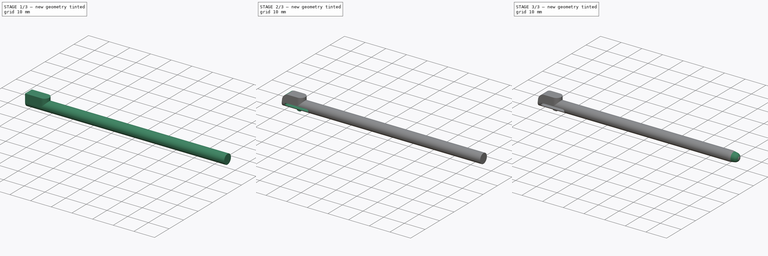
[diagram: build sequence overview — one tinted view per stage of 3, left to right]
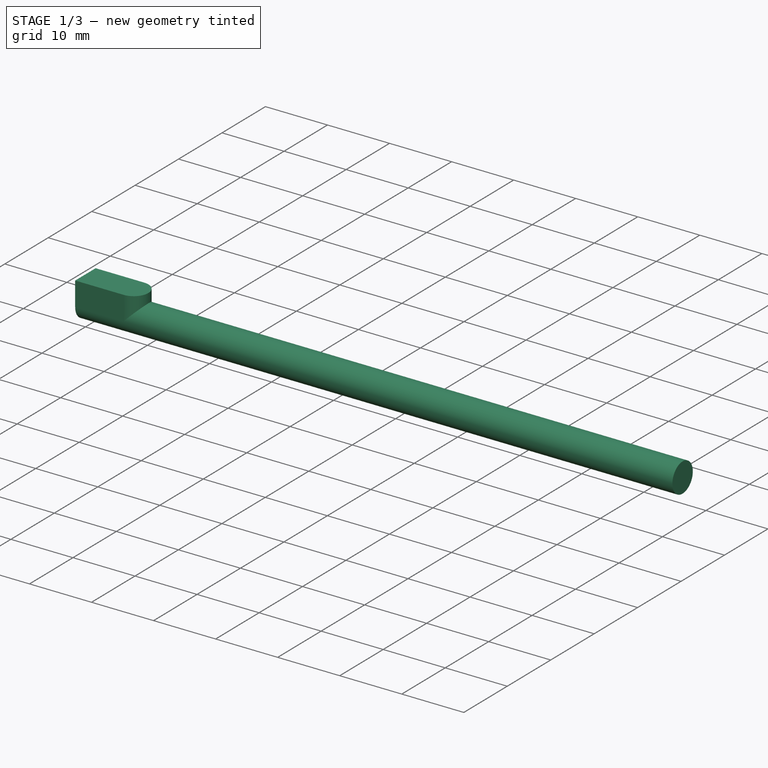
[diagram: stage 1 of 3 — iso view after this stage's code; geometry added in this stage tinted green]
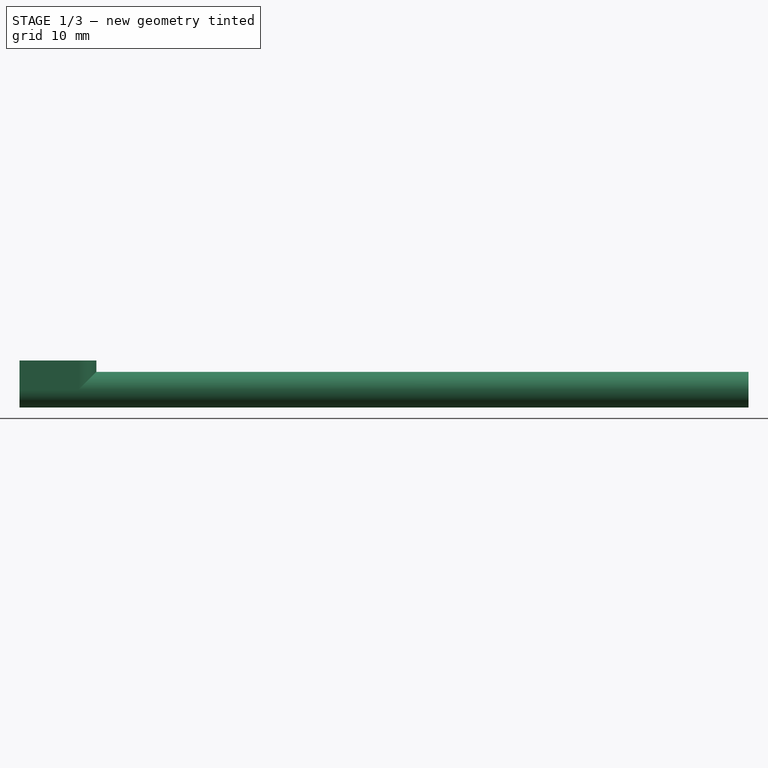
[diagram: stage 1 of 3 — front view after this stage's code; geometry added in this stage tinted green]
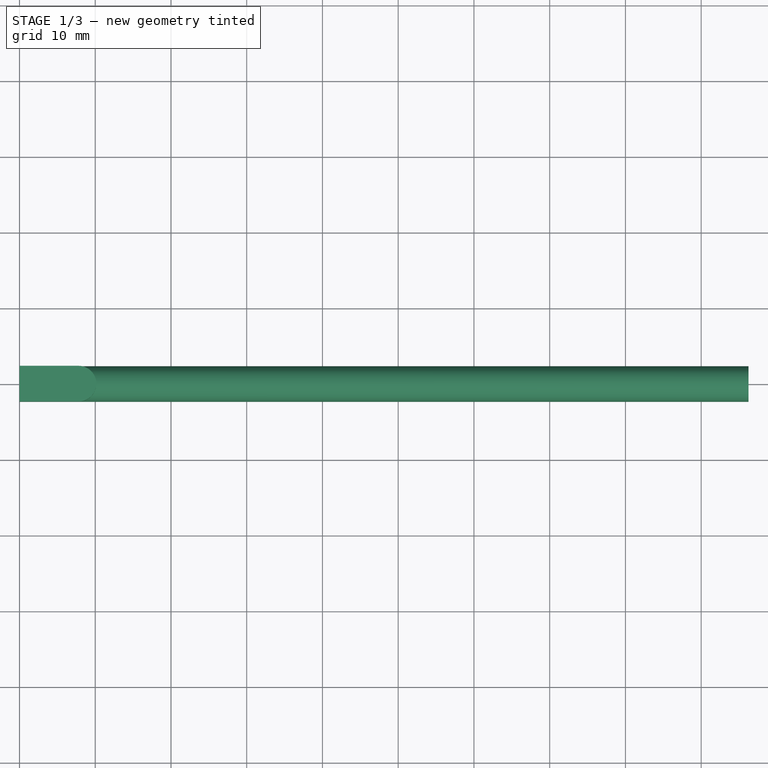
[diagram: stage 1 of 3 — top view after this stage's code; geometry added in this stage tinted green]
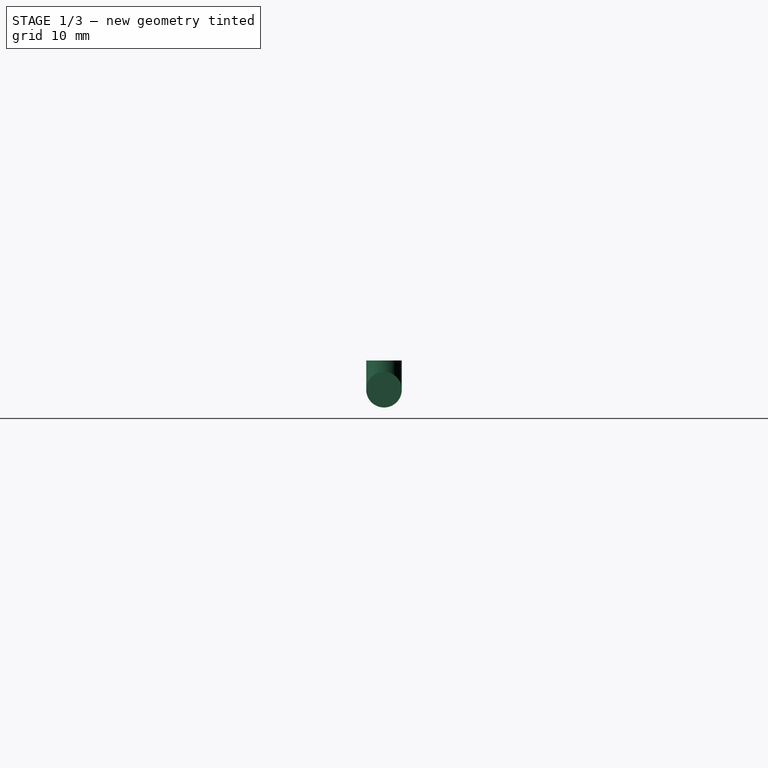
[diagram: stage 1 of 3 — right view after this stage's code; geometry added in this stage tinted green]
FCSTD DOCUMENT  (FreeCAD 1.0R39109 (Git))
Label: DSi XL Stylus
License: Creative Commons Attribution-NonCommercial-ShareAlike
LicenseURL: http://creativecommons.org/licenses/by-nc-sa/4.0/
objects: Sketcher::SketchObject×7, PartDesign::Pad×3, PartDesign::Pocket×3, PartDesign::Groove×1, PartDesign::Body×1
note: 36 computed .brp shape members not serialized (recipe doc carries the construction recipe); baked Part::Feature solids carry a one-line shape summary decoded from their .brp

FEATURE [Sketcher::SketchObject] Sketch
  ArcFitTolerance = 0
  AttachmentSupport = -> [YZ_Plane]
  FullyConstrained = true
  MakeInternals = false
  MapMode = 5
  Placement = pos=(0,0,0) rot=(0.57735,0.57735,0.57735;2.0944rad)
  sketch-geometry (1):
    g0: Circle CenterX=0 CenterY=0 CenterZ=0 NormalX=0 NormalY=0 NormalZ=1 AngleXU=0 Radius=2.35
  constraints (2):
    c: Coincident(g0,g-1)
    c: Diameter(g0) = 4.7
FEATURE [PartDesign::Pad] Pad
  Direction = (1,0,0)
  Length = 96.25
  Length2 = 10
  Placement = pos=(0,0,0) rot=(0.57735,0.57735,0.57735;2.0944rad)
  Profile = -> Sketch
  ReferenceAxis = -> Sketch [N_Axis]
  Suppressed = false
  Type = 0
FEATURE [Sketcher::SketchObject] Sketch001
  ArcFitTolerance = 0
  AttachmentSupport = -> [XY_Plane]
  ExternalGeometry = -> [Pad]
  FullyConstrained = true
  MakeInternals = false
  MapMode = 5
  sketch-geometry (7):
    g0: LineSegment [constr] StartX=5e-16 StartY=2.35 StartZ=0 EndX=10.15 EndY=2.35 EndZ=0
    g1: LineSegment [constr] StartX=10.15 StartY=2.35 StartZ=0 EndX=10.15 EndY=-2.35 EndZ=0
    g2: LineSegment [constr] StartX=10.15 StartY=-2.35 StartZ=0 EndX=0 EndY=-2.35 EndZ=0
    g3: LineSegment StartX=0 StartY=-2.35 StartZ=0 EndX=5e-16 EndY=2.35 EndZ=0
    g4: ArcOfCircle CenterX=7.8 CenterY=0 CenterZ=0 NormalX=0 NormalY=0 NormalZ=1 AngleXU=0 Radius=2.35 StartAngle=4.71239 EndAngle=7.85398
    g5: LineSegment StartX=5e-16 StartY=2.35 StartZ=0 EndX=7.8 EndY=2.35 EndZ=0
    g6: LineSegment StartX=7.8 StartY=-2.35 StartZ=0 EndX=0 EndY=-2.35 EndZ=0
  constraints (17):
    c: Coincident(g0,g1)
    c: Coincident(g1,g2)
    c: Coincident(g2,g3)
    c: Coincident(g3,g0)
    c: Horizontal(g0)
    c: Horizontal(g2)
    c: Vertical(g1)
    c: Coincident(g0,g-3)
    c: Coincident(g2,g-3)
    c: Distance(g0) = 10.15
    c: Tangent(g4,g1)
    c: Tangent(g4,g0) = 1.5708
    c: Tangent(g4,g2) = 1.5708
    c: Coincident(g5,g3)
    c: Coincident(g5,g4)
    c: Coincident(g6,g4)
    c: Coincident(g6,g3)
FEATURE [PartDesign::Pad] Pad001
  BaseFeature = -> Pad
  Direction = (0,0,1)
  Length = 3.85
  Length2 = 10
  Placement = pos=(0,0,0) rot=(0.57735,0.57735,0.57735;2.0944rad)
  Profile = -> Sketch001
  ReferenceAxis = -> Sketch001 [N_Axis]
  Suppressed = false
  Type = 0
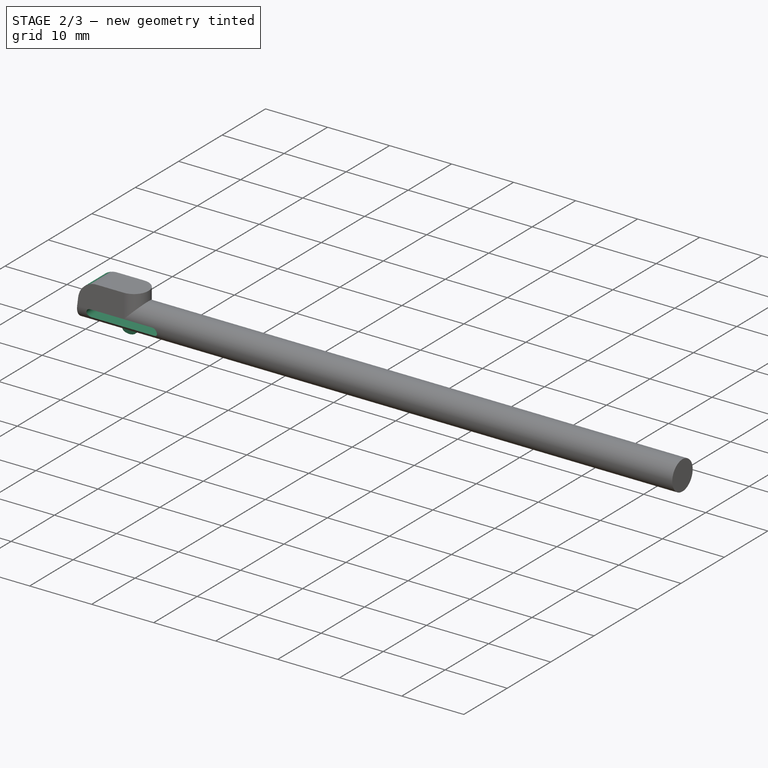
[diagram: stage 2 of 3 — iso view after this stage's code; geometry added in this stage tinted green]
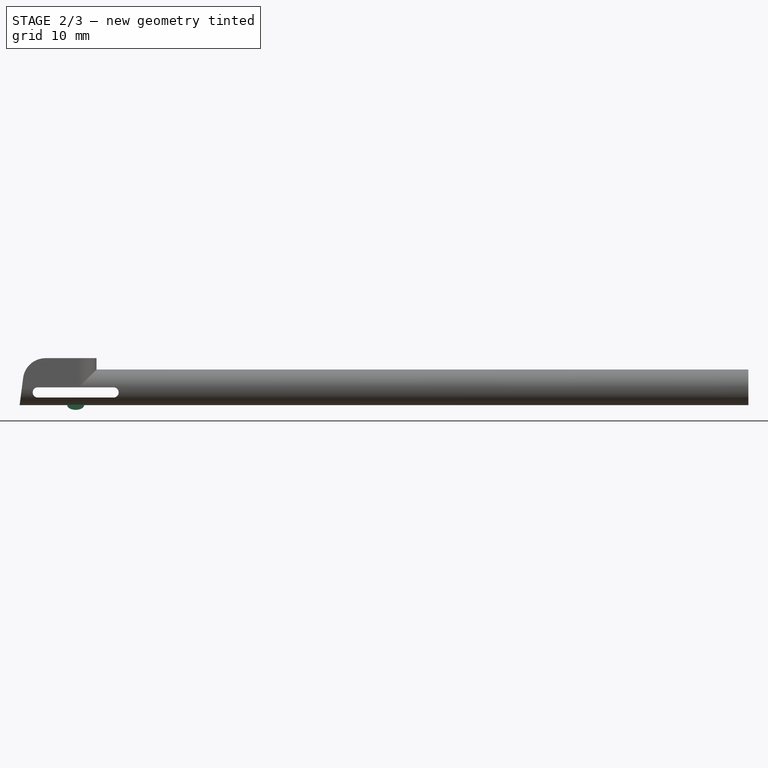
[diagram: stage 2 of 3 — front view after this stage's code; geometry added in this stage tinted green]
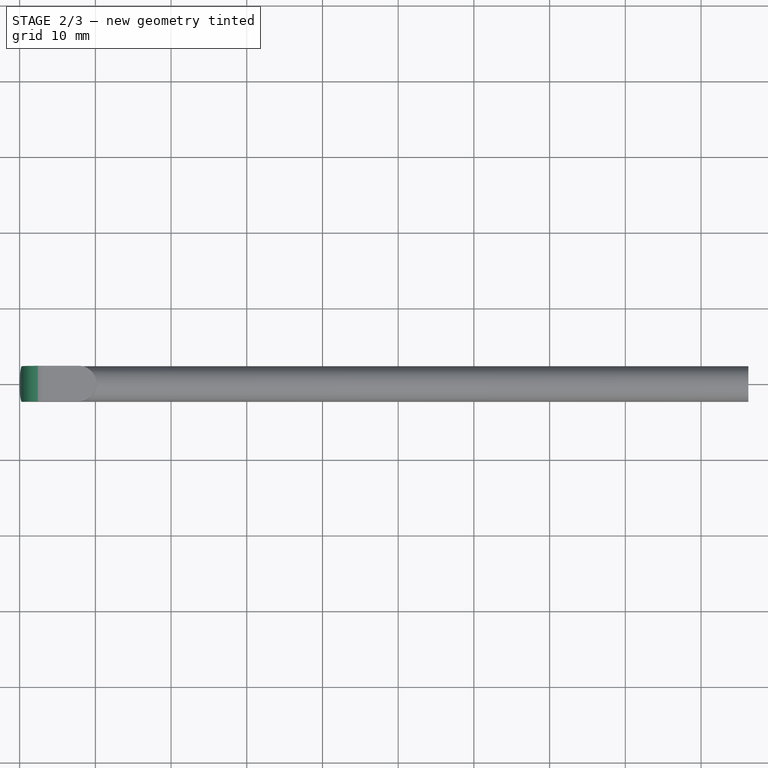
[diagram: stage 2 of 3 — top view after this stage's code; geometry added in this stage tinted green]
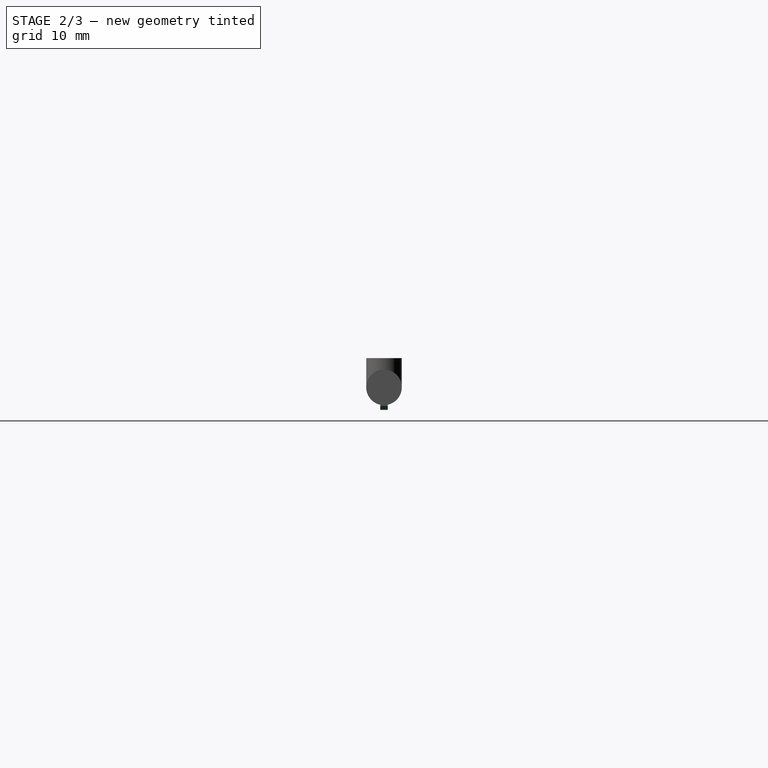
[diagram: stage 2 of 3 — right view after this stage's code; geometry added in this stage tinted green]
FEATURE [Sketcher::SketchObject] Sketch002
  ArcFitTolerance = 0
  AttachmentSupport = -> [Pad001]
  ExternalGeometry = -> [Pad001]
  FullyConstrained = true
  MakeInternals = false
  MapMode = 5
  Placement = pos=(-5e-16,-2.35,3e-16) rot=(0.57735,0.57735,-0.57735;2.0944rad)
  sketch-geometry (5):
    g0: Circle [constr] CenterX=-0.85 CenterY=3.43444 CenterZ=0 NormalX=0 NormalY=0 NormalZ=1 AngleXU=0 Radius=3
    g1: LineSegment StartX=-1.23119 StartY=0.458762 StartZ=0 EndX=2.35 EndY=2.2e-15 EndZ=0
    g2: ArcOfCircle CenterX=-0.85 CenterY=3.43444 CenterZ=0 NormalX=0 NormalY=0 NormalZ=1 AngleXU=0 Radius=3 StartAngle=3.14159 EndAngle=4.58498
    g3: LineSegment StartX=-3.85 StartY=3.43444 StartZ=0 EndX=-3.85 EndY=0 EndZ=0
    g4: LineSegment StartX=-3.85 StartY=0 StartZ=0 EndX=2.35 EndY=2.2e-15 EndZ=0
  constraints (12):
    c: Tangent(g0,g-3)
    c: Diameter(g0) = 6
    c: Coincident(g1,g-4)
    c: Angle(g1,g-4) = 0.127409
    c: Tangent(g1,g0) = -1.5708
    c: Coincident(g2,g1)
    c: Tangent(g2,g-3) = -1.5708
    c: Equal(g2,g0)
    c: Coincident(g3,g2)
    c: Coincident(g3,g-3)
    c: Coincident(g4,g3)
    c: Coincident(g4,g1)
FEATURE [PartDesign::Pocket] Pocket
  BaseFeature = -> Pad001
  Direction = (0,1,0)
  Length = 5
  Length2 = 5
  Placement = pos=(0,0,0) rot=(0.57735,0.57735,0.57735;2.0944rad)
  Profile = -> Sketch002
  ReferenceAxis = -> Sketch002 [N_Axis]
  Suppressed = false
  Type = 0
FEATURE [Sketcher::SketchObject] Sketch003
  ArcFitTolerance = 0
  AttachmentSupport = -> [XZ_Plane]
  ExternalGeometry = -> [Pocket]
  FullyConstrained = true
  MakeInternals = false
  MapMode = 5
  Placement = pos=(0,0,0) rot=(1,0,0;1.5708rad)
  sketch-geometry (9):
    g0: LineSegment [constr] StartX=0.301042 StartY=1.1e-15 StartZ=0 EndX=8.65104 EndY=1.1e-15 EndZ=0
    g1: LineSegment [constr] StartX=8.65104 StartY=1.1e-15 StartZ=0 EndX=8.65104 EndY=-2.35 EndZ=0
    g2: LineSegment [constr] StartX=8.65104 StartY=-2.35 StartZ=0 EndX=6.15104 EndY=-2.35 EndZ=0
    g3: LineSegment [constr] StartX=6.15104 StartY=-2.35 StartZ=0 EndX=0 EndY=-2.35 EndZ=0
    g4: Ellipse CenterX=7.40104 CenterY=-2.35 CenterZ=0 NormalX=0 NormalY=0 NormalZ=1 MajorRadius=1.125 MinorRadius=0.625 AngleXU=5e-16
    g5: LineSegment [constr] StartX=8.52604 StartY=-2.35 StartZ=0 EndX=6.27604 EndY=-2.35 EndZ=0
    g6: LineSegment [constr] StartX=7.40104 StartY=-1.725 StartZ=0 EndX=7.40104 EndY=-2.975 EndZ=0
    g7: GeomPoint [constr] X=8.33646 Y=-2.35 Z=0
    g8: GeomPoint [constr] X=6.46563 Y=-2.35 Z=0
  constraints (16):
    c: Coincident(g0,g-4)
    c: Horizontal(g0)
    c: Distance(g0) = 8.35
    c: Coincident(g1,g0)
    c: Vertical(g1)
    c: Coincident(g2,g1)
    c: Horizontal(g2)
    c: Coincident(g3,g2)
    c: Coincident(g3,g-3)
    c: Horizontal(g3)
    c: Distance(g2) = 2.5
    c: InternalAlignment(g5-g8 -> g4) x4
    c: Distance(g5) = 2.25
    c: Distance(g6) = 1.25
    c: Symmetric(g2,g1,g4)
    c: PointOnObject(g5,g3)
FEATURE [PartDesign::Pad] Pad002
  BaseFeature = -> Pocket
  Direction = (0,-1,2e-16)
  Length = 0.5
  Length2 = 0.5
  Placement = pos=(0,0,0) rot=(0.57735,0.57735,0.57735;2.0944rad)
  Profile = -> Sketch003
  ReferenceAxis = -> Sketch003 [N_Axis]
  Suppressed = false
  Type = 4
FEATURE [Sketcher::SketchObject] Sketch004
  ArcFitTolerance = 0
  AttachmentSupport = -> [Pad002]
  ExternalGeometry = -> [Pad002]
  FullyConstrained = true
  MakeInternals = false
  MapMode = 5
  Placement = pos=(-5e-16,-2.35,1.8e-15) rot=(0.57735,0.57735,-0.57735;2.0944rad)
  sketch-geometry (5):
    g0: ArcOfCircle CenterX=0.675 CenterY=2.40104 CenterZ=0 NormalX=0 NormalY=0 NormalZ=1 AngleXU=0 Radius=0.675 StartAngle=3.14159 EndAngle=6.28319
    g1: ArcOfCircle CenterX=0.675 CenterY=12.401 CenterZ=0 NormalX=0 NormalY=0 NormalZ=1 AngleXU=0 Radius=0.675 StartAngle=4.1e-15 EndAngle=3.14159
    g2: LineSegment StartX=1.35 StartY=2.40104 StartZ=0 EndX=1.35 EndY=12.401 EndZ=0
    g3: LineSegment StartX=-1e-15 StartY=12.401 StartZ=0 EndX=-9e-16 EndY=2.40104 EndZ=0
    g4: LineSegment [constr] StartX=2.35 StartY=7.40104 StartZ=0 EndX=1.35 EndY=7.40104 EndZ=0
  constraints (12):
    c: Tangent(g0,g2) = -1.5708
    c: Tangent(g2,g1) = -1.5708
    c: Tangent(g1,g3) = -1.5708
    c: Tangent(g3,g0) = -1.5708
    c: Equal(g0,g1)
    c: Vertical(g2)
    c: Coincident(g4,g-3)
    c: Horizontal(g4)
    c: Distance(g4) = 1
    c: Symmetric(g1,g0,g4)
    c: PointOnObject(g0,g-4)
    c: Distance(g2) = 10
FEATURE [PartDesign::Pocket] Pocket001
  BaseFeature = -> Pad002
  Direction = (0,1,0)
  Length = 10
  Length2 = 5
  Placement = pos=(0,0,0) rot=(0.57735,0.57735,0.57735;2.0944rad)
  Profile = -> Sketch004
  ReferenceAxis = -> Sketch004 [N_Axis]
  Suppressed = false
  Type = 0
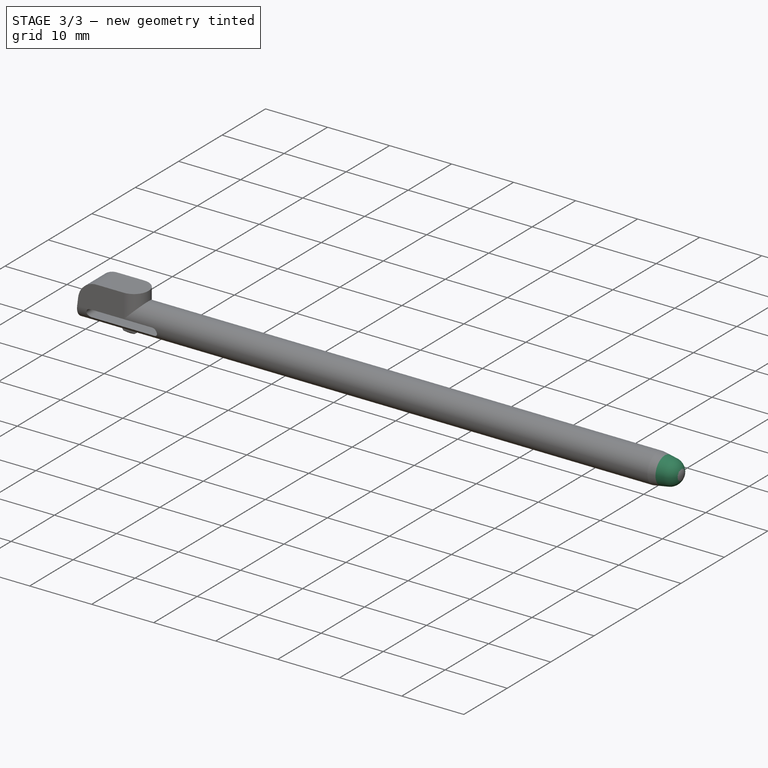
[diagram: stage 3 of 3 — iso view after this stage's code; geometry added in this stage tinted green]
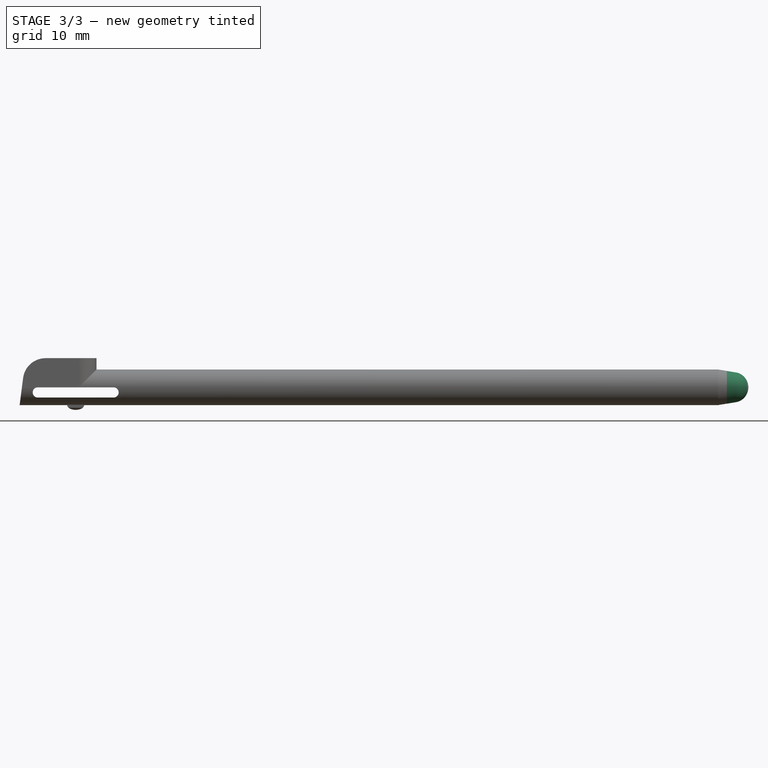
[diagram: stage 3 of 3 — front view after this stage's code; geometry added in this stage tinted green]
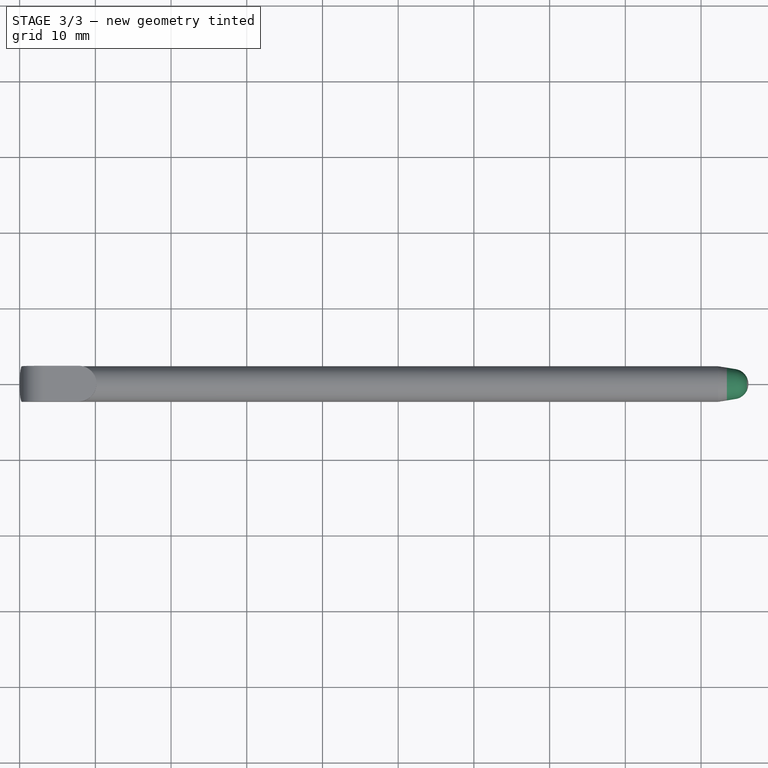
[diagram: stage 3 of 3 — top view after this stage's code; geometry added in this stage tinted green]
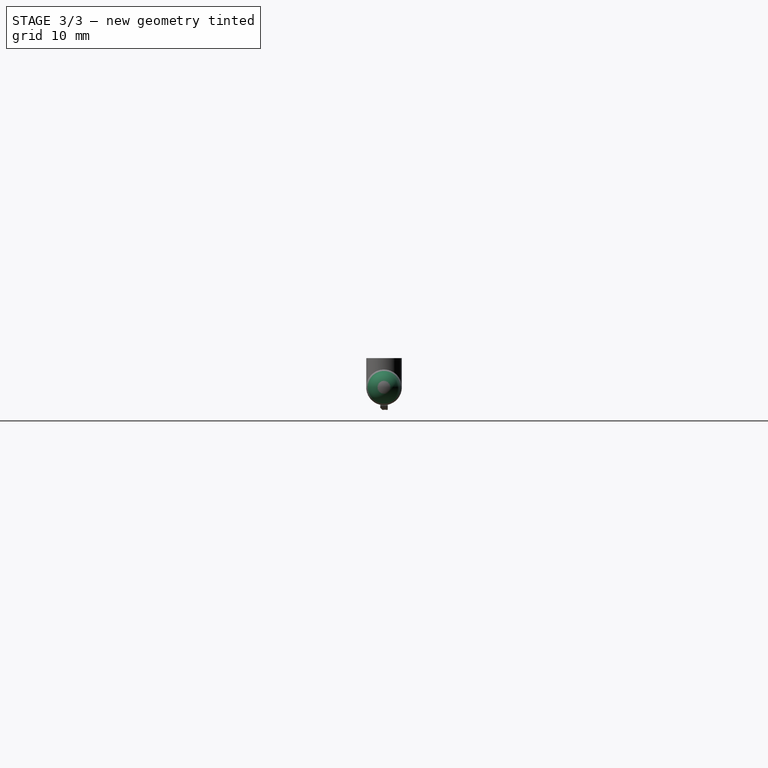
[diagram: stage 3 of 3 — right view after this stage's code; geometry added in this stage tinted green]
FEATURE [Sketcher::SketchObject] Sketch005
  ArcFitTolerance = 0
  AttachmentSupport = -> [XZ_Plane]
  ExternalGeometry = -> [Pocket001]
  FullyConstrained = true
  MakeInternals = false
  MapMode = 5
  Placement = pos=(0,0,0) rot=(1,0,0;1.5708rad)
  sketch-geometry (6):
    g0: LineSegment StartX=96.25 StartY=2.35 StartZ=0 EndX=92.25 EndY=2.35 EndZ=0
    g1: LineSegment StartX=92.25 StartY=2.35 StartZ=0 EndX=94.5698 EndY=1.97427 EndZ=0
    g2: ArcOfCircle CenterX=94.25 CenterY=7.99e-14 CenterZ=0 NormalX=0 NormalY=0 NormalZ=1 AngleXU=0 Radius=2 StartAngle=0 EndAngle=1.41022
    g3: LineSegment StartX=96.25 StartY=2.35 StartZ=0 EndX=97.25 EndY=2.35 EndZ=0
    g4: LineSegment StartX=97.25 StartY=2.35 StartZ=0 EndX=97.25 EndY=0 EndZ=0
    g5: LineSegment StartX=97.25 StartY=0 StartZ=0 EndX=96.25 EndY=7.99e-14 EndZ=0
  constraints (16):
    c: Coincident(g0,g-3)
    c: Coincident(g1,g0)
    c: Tangent(g2,g1) = 1.5708
    c: Tangent(g2,g-3) = -1.5708
    c: Symmetric(g0,g-3,g2)
    c: Horizontal(g0)
    c: Diameter(g2) = 4
    c: Distance(g0) = 4
    c: Coincident(g3,g0)
    c: Horizontal(g3)
    c: Coincident(g4,g3)
    c: PointOnObject(g4,g-1)
    c: Vertical(g4)
    c: Coincident(g5,g4)
    c: Coincident(g5,g2)
    c: Distance(g3) = 1
FEATURE [PartDesign::Groove] Groove
  Angle = 360
  Angle2 = 60
  Axis = (1,0,0)
  Base = (0,0,0)
  BaseFeature = -> Pocket001
  Placement = pos=(0,0,0) rot=(0.57735,0.57735,0.57735;2.0944rad)
  Profile = -> Sketch005
  ReferenceAxis = -> Sketch005 [H_Axis]
  Refine = true
  Reversed = true
  Suppressed = false
  Type = 0
FEATURE [Sketcher::SketchObject] Sketch006
  ArcFitTolerance = 0
  AttachmentSupport = -> [YZ_Plane]
  ExternalGeometry = -> [Groove]
  FullyConstrained = true
  MakeInternals = false
  MapMode = 5
  Placement = pos=(0,0,0) rot=(0.57735,0.57735,0.57735;2.0944rad)
  sketch-geometry (7):
    g0: LineSegment [constr] StartX=0.5 StartY=-2.975 StartZ=0 EndX=-0.5 EndY=-2.975 EndZ=0
    g1: LineSegment [constr] StartX=-0.203555 StartY=-2.975 StartZ=0 EndX=-0.5 EndY=-2.70645 EndZ=0
    g2: LineSegment [constr] StartX=-0.5 StartY=-2.70645 StartZ=0 EndX=-1.4238 EndY=-1.86957 EndZ=0
    g3: LineSegment [constr] StartX=-1.4238 StartY=-1.86957 StartZ=0 EndX=-1.72024 EndY=-1.60102 EndZ=0
    g4: LineSegment StartX=-1.72024 StartY=-1.60102 StartZ=0 EndX=-1.72024 EndY=-2.975 EndZ=0
    g5: LineSegment StartX=-1.72024 StartY=-2.975 StartZ=0 EndX=-0.203555 EndY=-2.975 EndZ=0
    g6: LineSegment StartX=-0.203555 StartY=-2.975 StartZ=0 EndX=-1.72024 EndY=-1.60102 EndZ=0
  constraints (19):
    c: Coincident(g0,g-5)
    c: Coincident(g0,g-4)
    c: PointOnObject(g1,g0)
    c: PointOnObject(g1,g-4)
    c: Coincident(g2,g1)
    c: PointOnObject(g2,g-3)
    c: Parallel(g2,g1)
    c: Distance(g1) = 0.4
    c: Coincident(g3,g2)
    c: PointOnObject(g3,g-3)
    c: Distance(g3) = 0.4
    c: Parallel(g3,g2)
    c: Coincident(g4,g3)
    c: Vertical(g4)
    c: Coincident(g5,g4)
    c: Coincident(g5,g1)
    c: Horizontal(g5)
    c: Coincident(g6,g5)
    c: Coincident(g6,g4)
FEATURE [PartDesign::Pocket] Pocket002
  BaseFeature = -> Groove
  Direction = (-1,0,0)
  Length = 100
  Length2 = 100
  Placement = pos=(0,0,0) rot=(0.57735,0.57735,0.57735;2.0944rad)
  Profile = -> Sketch006
  ReferenceAxis = -> Sketch006 [N_Axis]
  Suppressed = false
  Type = 4
FEATURE [PartDesign::Body] Body  label="Nintendo DSi XL Stylus"
  AllowCompound = false
  Group = -> [Sketch,Pad,Sketch001,Pad001,Sketch002,Pocket,Sketch003,Pad002,Sketch004,Pocket001,Sketch005,Groove,Sketch006,Pocket002]
  Origin = -> Origin
  Placement = pos=(0,0,0) rot=(1,0,0;0.736005rad)
  Tip = -> Pocket002
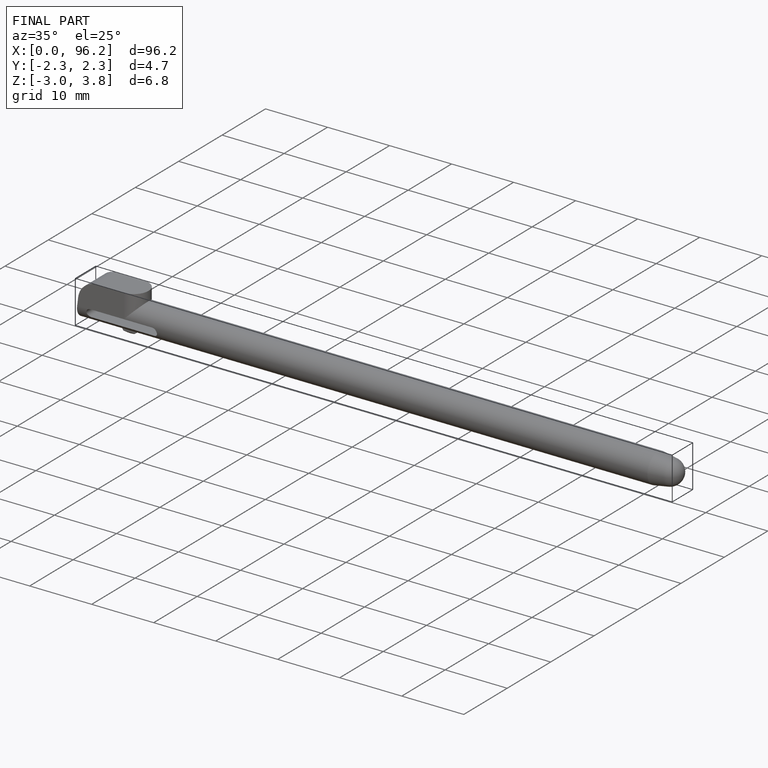
[diagram: finished part — iso view with bounding-box wireframe]
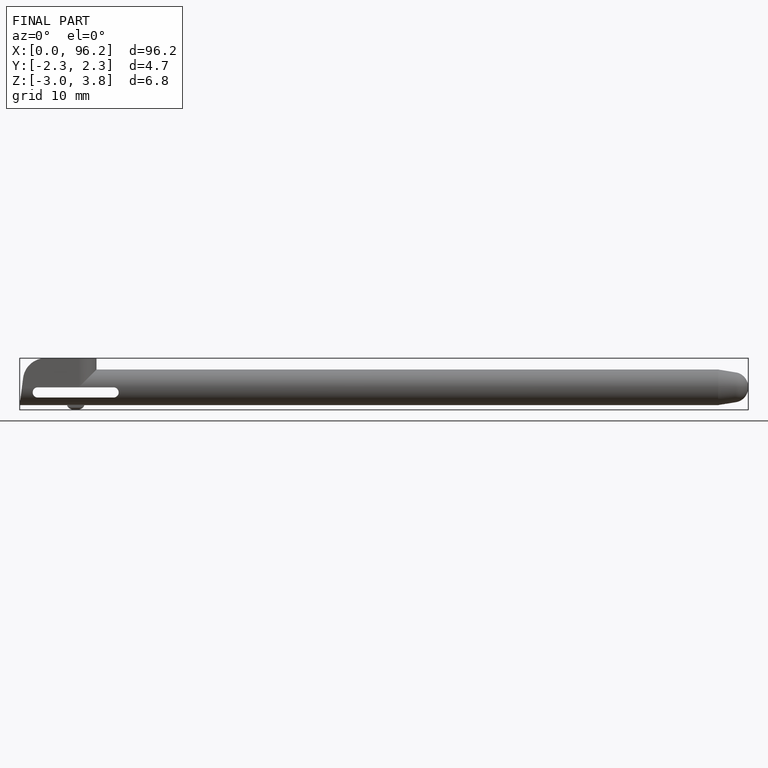
[diagram: finished part — front view with bounding-box wireframe]
